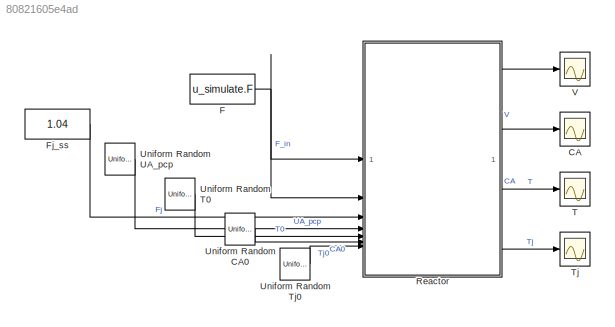
MODEL slx_80821605e4ad
KIND model
CONFIG AbsTol = auto
CONFIG EnableMultiTasking = off
CONFIG FixedStep = auto
CONFIG MaxStep = auto
CONFIG MinStep = auto
CONFIG RelTol = 1e-3
CONFIG SampleTimeConstraint = Unconstrained
CONFIG SolverName = ode23s
CONFIG StartTime = 0.0
CONFIG StopTime = 3600*4
BLOCK [Scope] CA
  Floating = off
  NumInputPorts = 1
  ScopeSpecificationString = Simulink.scopes.TimeScopeBlockCfg('CurrentConfiguration', extmgr.ConfigurationSet(extmgr.Configuration('Core','General UI',true,'FigureColor',[1 1 1]),extmgr.Configuration('Core','Source UI',true),extmgr.Configuration('Sources','WiredSimulink',true),extmgr.Configuration('Visuals','Time Domain',true,'SerializedDisplays',{struct('MinYLimReal','4.80682','MaxYLimReal','5.06882','YLabelReal','','MinYLi...<+1525ch>
BLOCK [Constant] F
  Value = u_simulate.F
BLOCK [Constant] Fj_ss 
  Value = 1.04
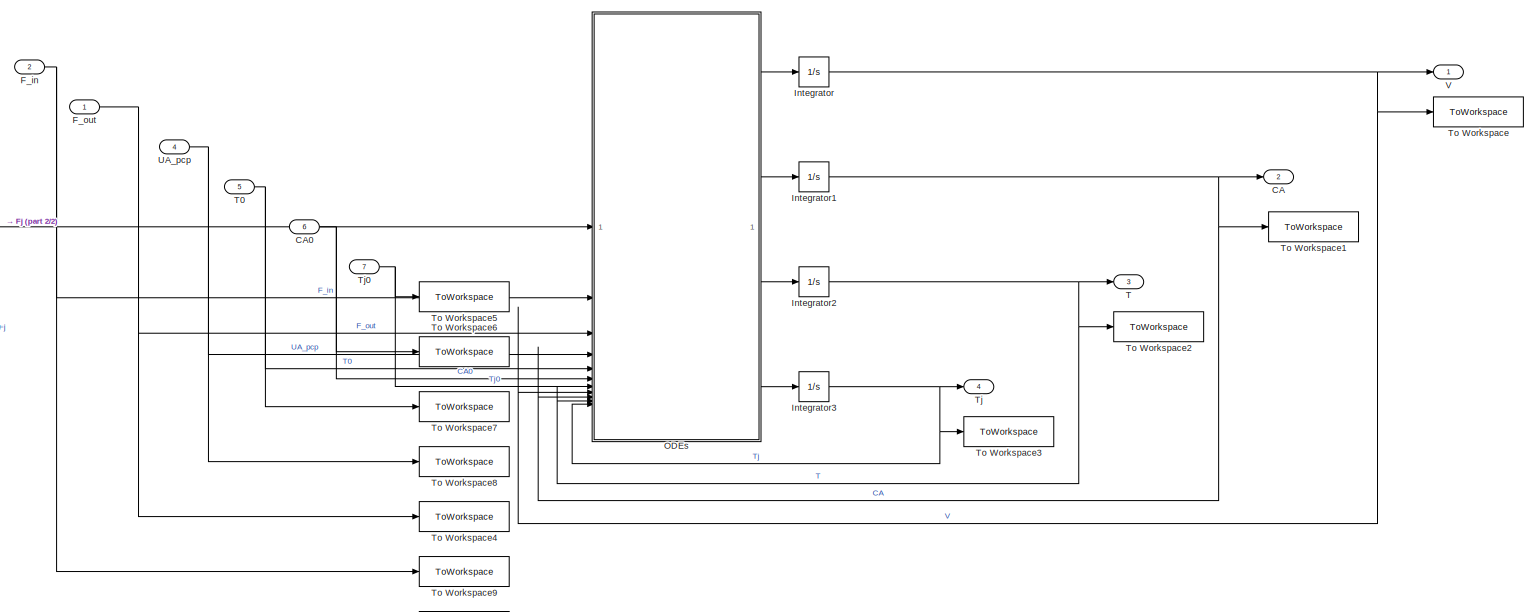
[diagram: Reactor - part 1/2, most of the canvas]
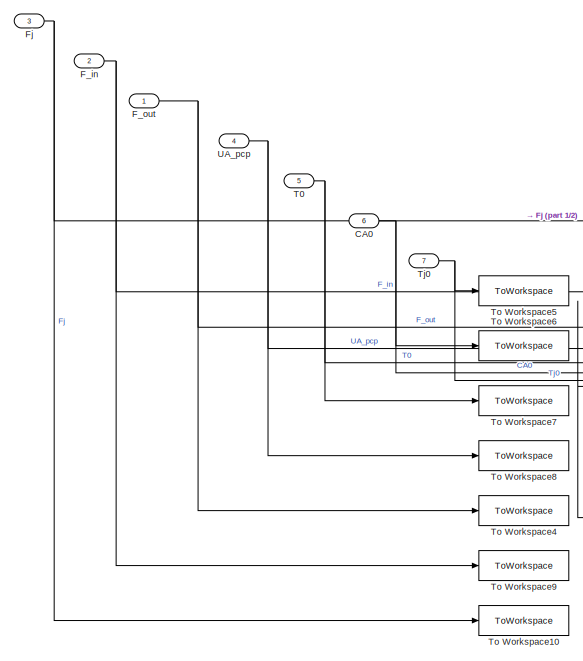
[diagram: Reactor - part 2/2, left side, full height]
BLOCK [SubSystem] Reactor
BLOCK [Outport] Reactor/CA
  Port = 2
BLOCK [Inport] Reactor/CA0
  Port = 6
BLOCK [Inport] Reactor/F_in
  Port = 2
BLOCK [Inport] Reactor/F_out
BLOCK [Inport] Reactor/Fj
  Port = 3
BLOCK [Integrator] Reactor/Integrator
  InitialCondition = u_simulate.V
BLOCK [Integrator] Reactor/Integrator1
  InitialCondition = u_simulate.CAs
BLOCK [Integrator] Reactor/Integrator2
  InitialCondition = u_simulate.Ts
BLOCK [Integrator] Reactor/Integrator3
  InitialCondition = u_simulate.Tjs
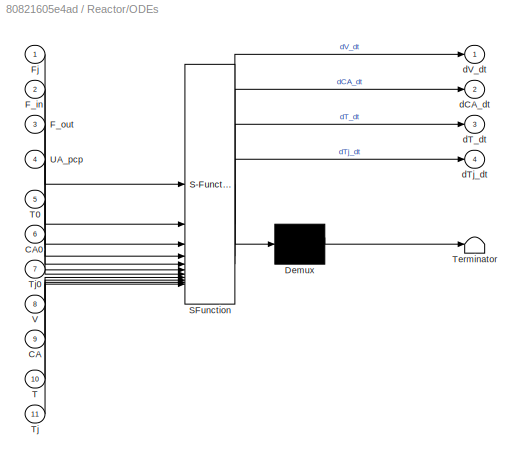
BLOCK [SubSystem] Reactor/ODEs
  ErrorFcn = Stateflow.Translate.translate
  PermitHierarchicalResolution = ExplicitOnly
  SFBlockType = MATLAB Function
  TreatAsAtomicUnit = on
BLOCK [Demux] Reactor/ODEs/ Demux 
  Outputs = 1
BLOCK [S-Function] Reactor/ODEs/ SFunction 
  EnableBusSupport = on
  FunctionName = sf_sfun
  PortCounts = [11 5]
  SFcnIsStateOwnerBlock = off
  SFunctionDeploymentMode = off
  Tag = Stateflow S-Function 2
BLOCK [Terminator] Reactor/ODEs/ Terminator 
BLOCK [Inport] Reactor/ODEs/CA
  Port = 9
BLOCK [Inport] Reactor/ODEs/CA0
  Port = 6
BLOCK [Inport] Reactor/ODEs/F_in
  Port = 2
BLOCK [Inport] Reactor/ODEs/F_out
  Port = 3
BLOCK [Inport] Reactor/ODEs/Fj
BLOCK [Inport] Reactor/ODEs/T
  Port = 10
BLOCK [Inport] Reactor/ODEs/T0
  Port = 5
BLOCK [Inport] Reactor/ODEs/Tj
  Port = 11
BLOCK [Inport] Reactor/ODEs/Tj0
  Port = 7
BLOCK [Inport] Reactor/ODEs/UA_pcp
  Port = 4
BLOCK [Inport] Reactor/ODEs/V
  Port = 8
BLOCK [Outport] Reactor/ODEs/dCA_dt
  Port = 2
BLOCK [Outport] Reactor/ODEs/dT_dt
  Port = 3
BLOCK [Outport] Reactor/ODEs/dTj_dt
  Port = 4
BLOCK [Outport] Reactor/ODEs/dV_dt
BLOCK [Outport] Reactor/T
  Port = 3
BLOCK [Inport] Reactor/T0
  Port = 5
BLOCK [Outport] Reactor/Tj
  Port = 4
BLOCK [Inport] Reactor/Tj0
  Port = 7
BLOCK [ToWorkspace] Reactor/To Workspace
  FixptAsFi = on
  MaxDataPoints = inf
  SampleTime = 1
  VariableName = V
BLOCK [ToWorkspace] Reactor/To Workspace1
  FixptAsFi = on
  MaxDataPoints = inf
  SampleTime = 1
  VariableName = CA
BLOCK [ToWorkspace] Reactor/To Workspace10
  FixptAsFi = on
  MaxDataPoints = inf
  SampleTime = 1
  VariableName = Fj
BLOCK [ToWorkspace] Reactor/To Workspace2
  FixptAsFi = on
  MaxDataPoints = inf
  SampleTime = 1
  VariableName = T
BLOCK [ToWorkspace] Reactor/To Workspace3
  FixptAsFi = on
  MaxDataPoints = inf
  SampleTime = 1
  VariableName = Tj
BLOCK [ToWorkspace] Reactor/To Workspace4
  FixptAsFi = on
  MaxDataPoints = inf
  SampleTime = 1
  VariableName = F_out
BLOCK [ToWorkspace] Reactor/To Workspace5
  FixptAsFi = on
  MaxDataPoints = inf
  SampleTime = 1
  VariableName = Tj0
BLOCK [ToWorkspace] Reactor/To Workspace6
  FixptAsFi = on
  MaxDataPoints = inf
  SampleTime = 1
  VariableName = CA0
BLOCK [ToWorkspace] Reactor/To Workspace7
  FixptAsFi = on
  MaxDataPoints = inf
  SampleTime = 1
  VariableName = T0
BLOCK [ToWorkspace] Reactor/To Workspace8
  FixptAsFi = on
  MaxDataPoints = inf
  SampleTime = 1
  VariableName = UA_pcp
BLOCK [ToWorkspace] Reactor/To Workspace9
  FixptAsFi = on
  MaxDataPoints = inf
  SampleTime = 1
  VariableName = F_in
BLOCK [Inport] Reactor/UA_pcp
  Port = 4
BLOCK [Outport] Reactor/V
BLOCK [Scope] T
  Floating = off
  NumInputPorts = 1
  ScopeSpecificationString = Simulink.scopes.TimeScopeBlockCfg('CurrentConfiguration', extmgr.ConfigurationSet(extmgr.Configuration('Core','General UI',true,'FigureColor',[1 1 1]),extmgr.Configuration('Core','Source UI',true),extmgr.Configuration('Sources','WiredSimulink',true,'DataLoggingVariableName','ScopeData5'),extmgr.Configuration('Visuals','Time Domain',true,'SerializedDisplays',{struct('MinYLimReal','349.70085','MaxYL...<+1603ch>
BLOCK [Scope] Tj
  Floating = off
  NumInputPorts = 1
  ScopeSpecificationString = Simulink.scopes.TimeScopeBlockCfg('CurrentConfiguration', extmgr.ConfigurationSet(extmgr.Configuration('Core','General UI',true,'FigureColor',[1 1 1]),extmgr.Configuration('Core','Source UI',true),extmgr.Configuration('Sources','WiredSimulink',true,'DataLoggingVariableName','ScopeData1'),extmgr.Configuration('Visuals','Time Domain',true,'SerializedDisplays',{struct('MinYLimReal','288.028','MaxYLim...<+1550ch>
BLOCK [UniformRandomNumber] Uniform Random CA0
  Maximum = 21
  Minimum = 19
  SampleTime = 200
  Seed = 1
BLOCK [UniformRandomNumber] Uniform Random T0
  Maximum = 305
  Minimum = 295
  SampleTime = 200
  Seed = 2
BLOCK [UniformRandomNumber] Uniform Random Tj0
  Maximum = 288
  Minimum = 278
  SampleTime = 200
BLOCK [UniformRandomNumber] Uniform Random UA_pcp
  Maximum = 0.37
  Minimum = 0.33
  SampleTime = 500
  Seed = 3
BLOCK [Scope] V
  Floating = off
  NumInputPorts = 1
  ScopeSpecificationString = Simulink.scopes.TimeScopeBlockCfg('CurrentConfiguration', extmgr.ConfigurationSet(extmgr.Configuration('Core','General UI',true,'FigureColor',[1 1 1]),extmgr.Configuration('Core','Source UI',true),extmgr.Configuration('Sources','WiredSimulink',true,'DataLoggingVariableName','ScopeData2'),extmgr.Configuration('Visuals','Time Domain',true,'SerializedDisplays',{struct('MinYLimReal','180.00000','MaxYL...<+1556ch>
NET F:1 -> Reactor:1, Reactor:2
LINE Fj_ss :1 -> Reactor:3
NET Reactor/CA0:1 -> Reactor/ODEs:6, Reactor/To Workspace6:1
NET Reactor/F_in:1 -> Reactor/ODEs:2, Reactor/To Workspace9:1
NET Reactor/F_out:1 -> Reactor/ODEs:3, Reactor/To Workspace4:1
NET Reactor/Fj:1 -> Reactor/ODEs:1, Reactor/To Workspace10:1
NET Reactor/Integrator1:1 -> Reactor/CA:1, Reactor/ODEs:9, Reactor/To Workspace1:1
NET Reactor/Integrator2:1 -> Reactor/ODEs:10, Reactor/T:1, Reactor/To Workspace2:1
NET Reactor/Integrator3:1 -> Reactor/ODEs:11, Reactor/Tj:1, Reactor/To Workspace3:1
NET Reactor/Integrator:1 -> Reactor/ODEs:8, Reactor/To Workspace:1, Reactor/V:1
LINE Reactor/ODEs:1 -> Reactor/Integrator:1
LINE Reactor/ODEs:2 -> Reactor/Integrator1:1
LINE Reactor/ODEs:3 -> Reactor/Integrator2:1
LINE Reactor/ODEs:4 -> Reactor/Integrator3:1
NET Reactor/T0:1 -> Reactor/ODEs:5, Reactor/To Workspace7:1
NET Reactor/Tj0:1 -> Reactor/ODEs:7, Reactor/To Workspace5:1
NET Reactor/UA_pcp:1 -> Reactor/ODEs:4, Reactor/To Workspace8:1
LINE Reactor:1 -> V:1
LINE Reactor:2 -> CA:1
LINE Reactor:3 -> T:1
LINE Reactor:4 -> Tj:1
LINE Uniform Random CA0:1 -> Reactor:6
LINE Uniform Random T0:1 -> Reactor:5
LINE Uniform Random Tj0:1 -> Reactor:7
LINE Uniform Random UA_pcp:1 -> Reactor:4
note: NET lines group one-source signal fan-out (src -> all destinations, sorted); 1:1 wires keep LINE
CHART Reactor/ODEs states=1 transitions=1
  STATE_LABEL 'eML_blk_kernel()'
  STATE_LABEL 'SCRIPT:\n function [dV_dt, dCA_dt, dT_dt, dTj_dt] = ODEs(Fj, F_in, F_out, UA_pcp, T0, CA0, Tj0, V, CA, T, Tj)\n\n% Process parameters\ndH_pcp = 5; % K.L/mol, heat of reaction divided by molar heat capacity\nE_R = 6000; % K, activation energy divided by universal gas constant\nk0 = 2.7e5; % 1/s, pre-exponential rate coefficient\nVj = 10;    % L, cooling jacket volume\n\nrxn = k0*CA*exp(-E_R / T);\n\ndV_dt = F...<+154ch>'
CHART  states=0 transitions=0
